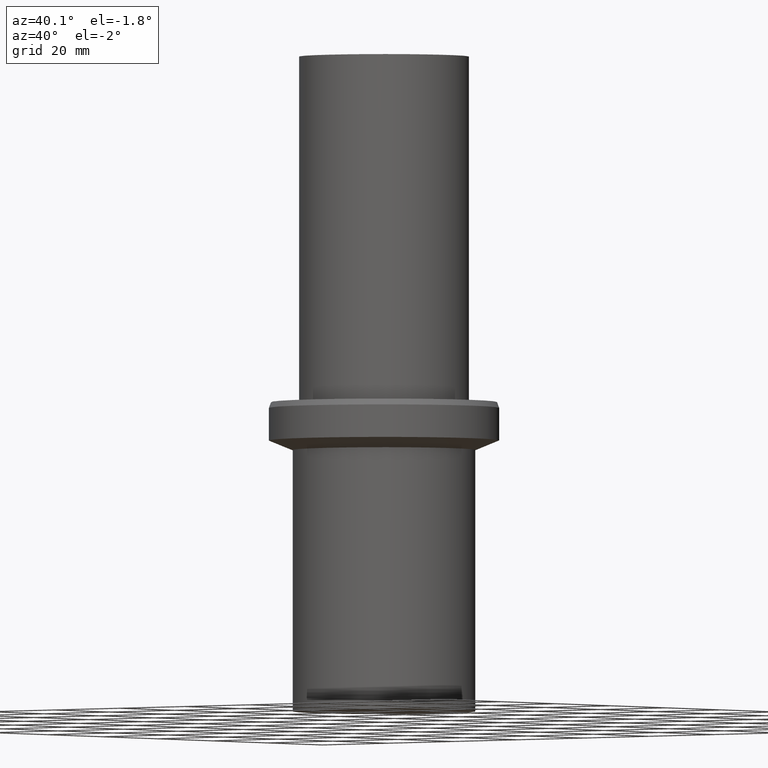
[diagram: clean part render]
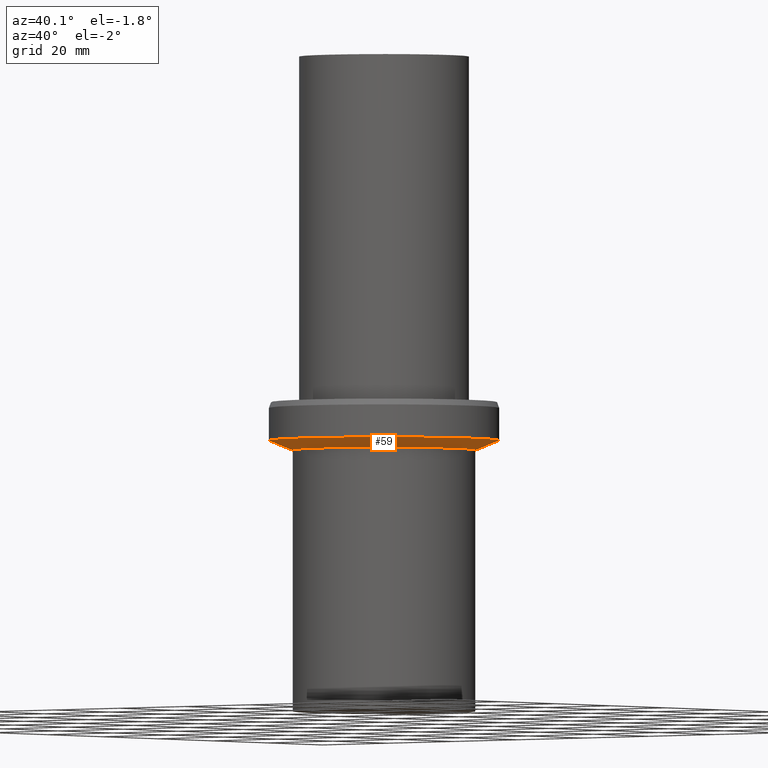
[diagram: same view with one face highlighted and labeled with its STEP entity id]
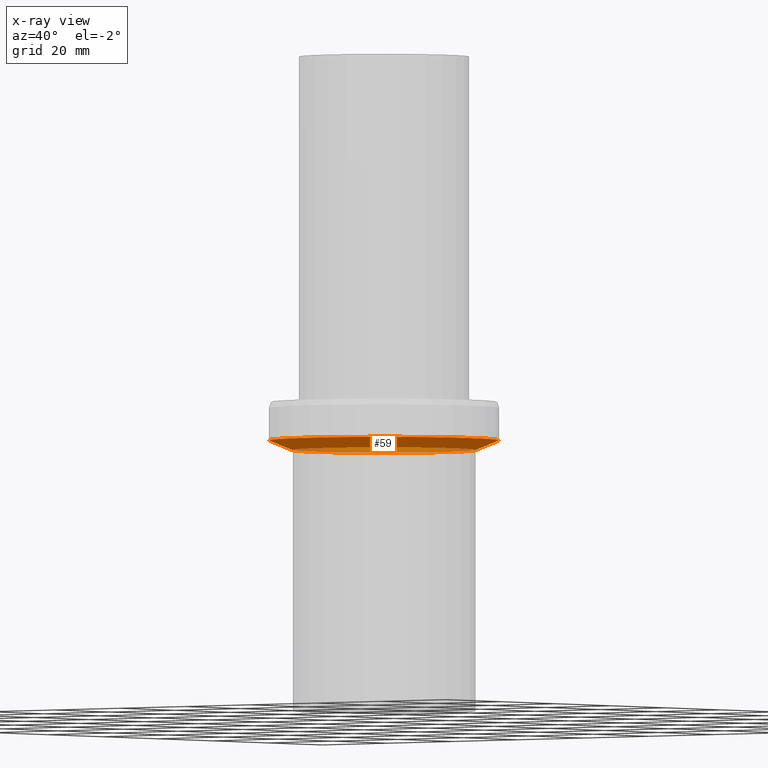
[diagram: x-ray of the same camera — body ghosted, the highlighted face saturated]
A machine part, auxiliary view. The second image highlights one B-rep face of the part: STEP entity #59.
The next image is the same camera in x-ray: the body ghosted, the highlighted face saturated — about 26% of this face is hidden behind the body in this view.
In plain terms, the highlighted conical surface has half-angle 67.831 deg.
Its self-contained STEP definition (entity closure, byte-faithful):
#48=EDGE_CURVE('Unnamed[1]',#107,#107,#108,.T.);
#59=ADVANCED_FACE('Unnamed[1]',(#124,#125),#126,.T.);
#77=EDGE_CURVE('Unnamed[1]',#153,#153,#154,.T.);
#107=VERTEX_POINT('',#178);
#108=CIRCLE('',#179,26.9999999999945);
#124=FACE_BOUND('',#199,.T.);
#125=FACE_BOUND('',#200,.T.);
#126=CONICAL_SURFACE('',#201,24.2499999999973,1.18387276800933);
#153=VERTEX_POINT('',#235);
#154=CIRCLE('',#236,21.5000000000001);
#178=CARTESIAN_POINT('',(-3.88825358729318E-015,26.9999999999945,63.5000000000055));
#179=AXIS2_PLACEMENT_3D('',#251,#252,#253);
#199=EDGE_LOOP('',(#270));
#200=EDGE_LOOP('',(#271));
#201=AXIS2_PLACEMENT_3D('',#272,#273,#274);
#235=CARTESIAN_POINT('',(-3.75102900207456E-015,21.5000000000001,61.2589524536573));
#236=AXIS2_PLACEMENT_3D('',#304,#305,#306);
#251=CARTESIAN_POINT('',(-3.88825358729318E-015,-7.77650717458636E-015,63.5000000000055));
#252=DIRECTION('',(6.12323399573677E-017,1.22464679914748E-016,-1.0));
#253=DIRECTION('',(-1.23259516440775E-032,1.0,1.22464679914748E-016));
#270=ORIENTED_EDGE('',*,*,#77,.F.);
#271=ORIENTED_EDGE('',*,*,#48,.T.);
#272=CARTESIAN_POINT('',(-3.81964129468387E-015,-7.63928258936774E-015,62.3794762268314));
#273=DIRECTION('',(-6.12323399573677E-017,-1.22464679914734E-016,1.0));
#274=DIRECTION('',(-1.23259516440778E-032,1.0,1.22464679914734E-016));
#304=CARTESIAN_POINT('',(-3.75102900207456E-015,-7.50205800414912E-015,61.2589524536573));
#305=DIRECTION('',(6.12323399573677E-017,1.22464679914718E-016,-1.0));
#306=DIRECTION('',(-1.23259516440782E-032,1.0,1.22464679914718E-016));